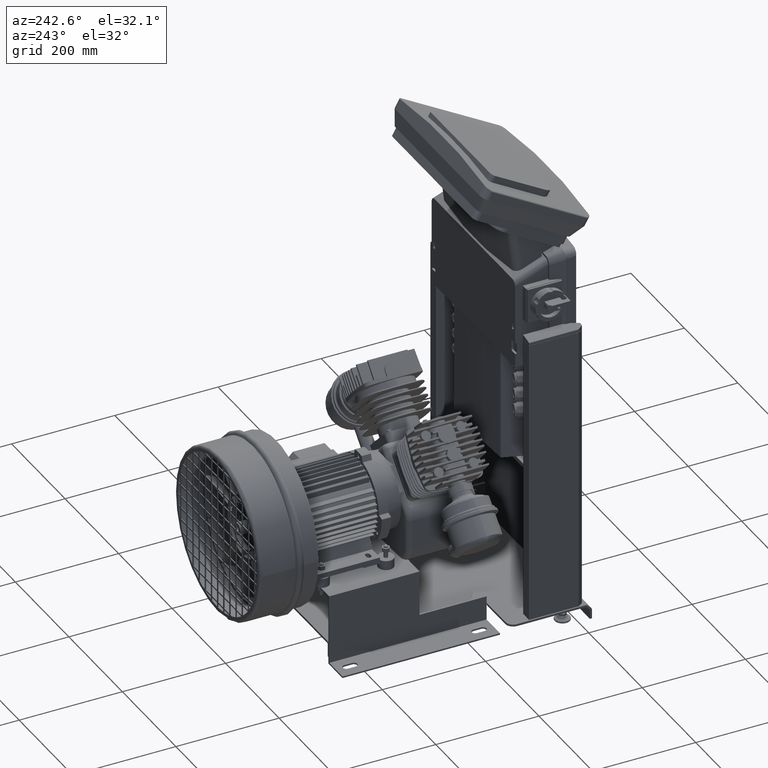
[diagram: clean part render]
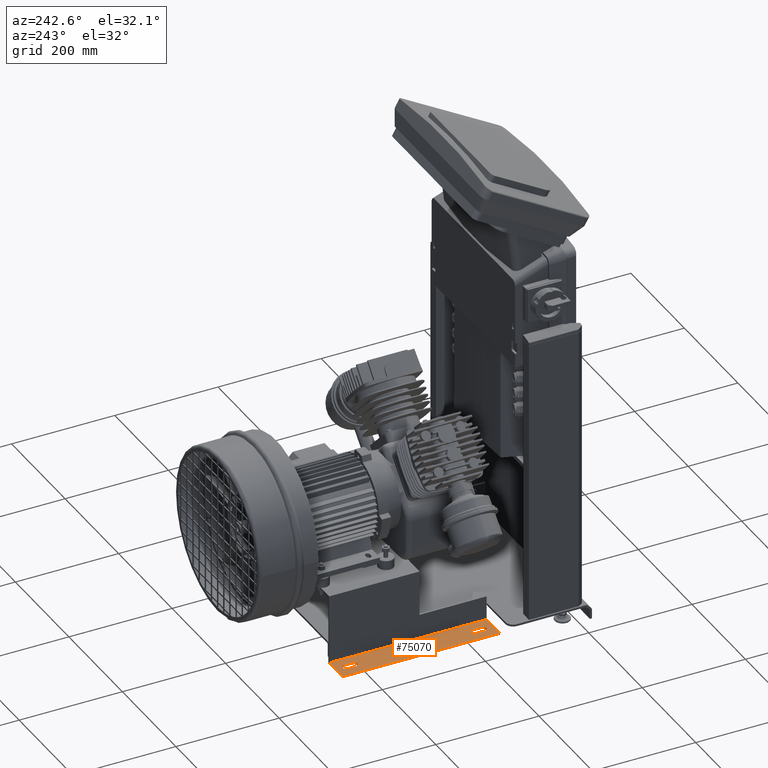
[diagram: same view with one face highlighted and labeled with its STEP entity id]
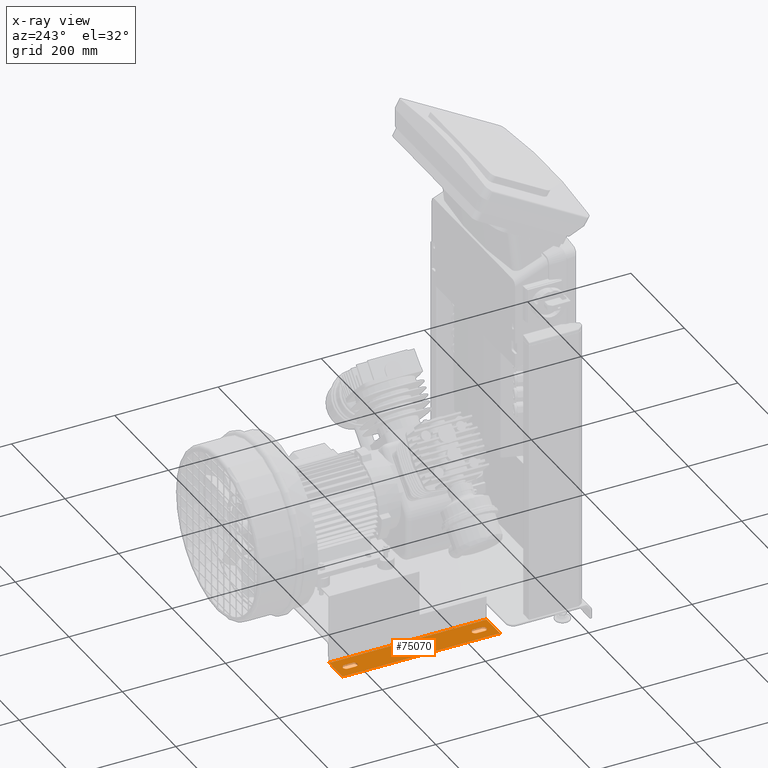
[diagram: x-ray of the same camera — body ghosted, the highlighted face saturated]
A machine part, auxiliary view. The second image highlights one B-rep face of the part: STEP entity #75070.
The next image is the same camera in x-ray: the body ghosted, the highlighted face saturated — about 0% of this face is hidden behind the body in this view.
In plain terms, the highlighted face is a freeform B-spline surface patch.
Its self-contained STEP definition (entity closure, byte-faithful):
#74210=CARTESIAN_POINT('',(-143.43243870689912,422.30965765900055,-23.000000000000039));
#74211=VERTEX_POINT('',#74210);
#74226=CARTESIAN_POINT('',(-143.43243870689912,437.30965765900055,-23.000000000000039));
#74227=VERTEX_POINT('',#74226);
#74234=CARTESIAN_POINT('',(-143.43243870689912,422.30965765900055,-23.000000000000039));
#74235=DIRECTION('',(0.0,1.0,0.0));
#74236=VECTOR('',#74235,15.0);
#74237=LINE('',#74234,#74236);
#74238=EDGE_CURVE('',#74211,#74227,#74237,.T.);
#74248=CARTESIAN_POINT('',(-130.43243870689912,437.30965765900055,-23.000000000000039));
#74249=VERTEX_POINT('',#74248);
#74266=CARTESIAN_POINT('',(-130.43243870689912,422.30965765900055,-23.000000000000039));
#74267=VERTEX_POINT('',#74266);
#74274=CARTESIAN_POINT('',(-130.43243870689912,437.30965765900055,-23.000000000000039));
#74275=DIRECTION('',(0.0,-1.0,0.0));
#74276=VECTOR('',#74275,15.0);
#74277=LINE('',#74274,#74276);
#74278=EDGE_CURVE('',#74249,#74267,#74277,.T.);
#74297=CARTESIAN_POINT('',(-136.93243870689912,422.30965765900055,-23.000000000000039));
#74298=DIRECTION('',(0.0,0.0,-1.0));
#74299=DIRECTION('',(1.0,0.0,0.0));
#74300=AXIS2_PLACEMENT_3D('',#74297,#74298,#74299);
#74301=CIRCLE('',#74300,6.5);
#74302=EDGE_CURVE('',#74267,#74211,#74301,.T.);
#74321=CARTESIAN_POINT('',(-136.93243870689912,437.30965765900055,-23.000000000000039));
#74322=DIRECTION('',(0.0,0.0,-1.0));
#74323=DIRECTION('',(1.0,0.0,0.0));
#74324=AXIS2_PLACEMENT_3D('',#74321,#74322,#74323);
#74325=CIRCLE('',#74324,6.5);
#74326=EDGE_CURVE('',#74227,#74249,#74325,.T.);
#74338=CARTESIAN_POINT('',(-143.43243870689912,172.30965765900055,-23.000000000000039));
#74339=VERTEX_POINT('',#74338);
#74354=CARTESIAN_POINT('',(-143.43243870689912,187.30965765900055,-23.000000000000039));
#74355=VERTEX_POINT('',#74354);
#74362=CARTESIAN_POINT('',(-143.43243870689912,172.30965765900055,-23.000000000000039));
#74363=DIRECTION('',(0.0,1.0,0.0));
#74364=VECTOR('',#74363,15.0);
#74365=LINE('',#74362,#74364);
#74366=EDGE_CURVE('',#74339,#74355,#74365,.T.);
#74376=CARTESIAN_POINT('',(-130.43243870689912,187.30965765900055,-23.000000000000039));
#74377=VERTEX_POINT('',#74376);
#74394=CARTESIAN_POINT('',(-130.43243870689912,172.30965765900055,-23.000000000000039));
#74395=VERTEX_POINT('',#74394);
#74402=CARTESIAN_POINT('',(-130.43243870689912,187.30965765900055,-23.000000000000039));
#74403=DIRECTION('',(0.0,-1.0,0.0));
#74404=VECTOR('',#74403,15.0);
#74405=LINE('',#74402,#74404);
#74406=EDGE_CURVE('',#74377,#74395,#74405,.T.);
#74425=CARTESIAN_POINT('',(-136.93243870689912,172.30965765900055,-23.000000000000039));
#74426=DIRECTION('',(0.0,0.0,-1.0));
#74427=DIRECTION('',(1.0,0.0,0.0));
#74428=AXIS2_PLACEMENT_3D('',#74425,#74426,#74427);
#74429=CIRCLE('',#74428,6.5);
#74430=EDGE_CURVE('',#74395,#74339,#74429,.T.);
#74449=CARTESIAN_POINT('',(-136.93243870689912,187.30965765900055,-23.000000000000039));
#74450=DIRECTION('',(0.0,0.0,-1.0));
#74451=DIRECTION('',(1.0,0.0,0.0));
#74452=AXIS2_PLACEMENT_3D('',#74449,#74450,#74451);
#74453=CIRCLE('',#74452,6.5);
#74454=EDGE_CURVE('',#74355,#74377,#74453,.T.);
#74915=CARTESIAN_POINT('',(-161.93243870689963,457.30965765900055,-23.000000000000039));
#74916=VERTEX_POINT('',#74915);
#74923=CARTESIAN_POINT('',(-111.93243870670767,457.30965765900055,-23.000000000000039));
#74924=VERTEX_POINT('',#74923);
#74925=CARTESIAN_POINT('',(-161.93243870689963,457.30965765900055,-23.000000000000039));
#74926=DIRECTION('',(1.0,0.0,0.0));
#74927=VECTOR('',#74926,50.00000000019196);
#74928=LINE('',#74925,#74927);
#74929=EDGE_CURVE('',#74916,#74924,#74928,.T.);
#75028=CARTESIAN_POINT('',(-161.93243870689963,152.30965765900055,-23.000000000000039));
#75029=CARTESIAN_POINT('',(-111.93243870670766,152.30965765900055,-23.000000000000039));
#75030=CARTESIAN_POINT('',(-161.93243870689963,457.30965765900055,-23.000000000000039));
#75031=CARTESIAN_POINT('',(-111.93243870670767,457.30965765900055,-23.000000000000039));
#75032=B_SPLINE_SURFACE_WITH_KNOTS('',1,1,((#75028,#75030),(#75029,#75031)),.UNSPECIFIED.,.F.,.F.,.U.,(2,2),(2,2),(0.0,50.000000000191974),(0.0,305.0),.UNSPECIFIED.);
#75033=CARTESIAN_POINT('',(-111.93243870670766,152.30965765900055,-23.000000000000039));
#75034=VERTEX_POINT('',#75033);
#75035=CARTESIAN_POINT('',(-111.93243870670767,457.30965765900055,-23.000000000000032));
#75036=DIRECTION('',(0.0,-1.0,0.0));
#75037=VECTOR('',#75036,305.0);
#75038=LINE('',#75035,#75037);
#75039=EDGE_CURVE('',#74924,#75034,#75038,.T.);
#75040=ORIENTED_EDGE('',*,*,#75039,.F.);
#75041=ORIENTED_EDGE('',*,*,#74929,.F.);
#75042=CARTESIAN_POINT('',(-161.93243870689963,152.30965765900055,-23.000000000000039));
#75043=VERTEX_POINT('',#75042);
#75044=CARTESIAN_POINT('',(-161.93243870689963,152.30965765900055,-23.000000000000039));
#75045=DIRECTION('',(0.0,1.0,0.0));
#75046=VECTOR('',#75045,305.0);
#75047=LINE('',#75044,#75046);
#75048=EDGE_CURVE('',#75043,#74916,#75047,.T.);
#75049=ORIENTED_EDGE('',*,*,#75048,.F.);
#75050=CARTESIAN_POINT('',(-111.93243870670766,152.30965765900055,-23.000000000000039));
#75051=DIRECTION('',(-1.0,0.0,0.0));
#75052=VECTOR('',#75051,50.000000000191974);
#75053=LINE('',#75050,#75052);
#75054=EDGE_CURVE('',#75034,#75043,#75053,.T.);
#75055=ORIENTED_EDGE('',*,*,#75054,.F.);
#75056=EDGE_LOOP('',(#75040,#75041,#75049,#75055));
#75057=FACE_OUTER_BOUND('',#75056,.T.);
#75058=ORIENTED_EDGE('',*,*,#74278,.T.);
#75059=ORIENTED_EDGE('',*,*,#74302,.T.);
#75060=ORIENTED_EDGE('',*,*,#74238,.T.);
#75061=ORIENTED_EDGE('',*,*,#74326,.T.);
#75062=EDGE_LOOP('',(#75058,#75059,#75060,#75061));
#75063=FACE_BOUND('',#75062,.T.);
#75064=ORIENTED_EDGE('',*,*,#74406,.T.);
#75065=ORIENTED_EDGE('',*,*,#74430,.T.);
#75066=ORIENTED_EDGE('',*,*,#74366,.T.);
#75067=ORIENTED_EDGE('',*,*,#74454,.T.);
#75068=EDGE_LOOP('',(#75064,#75065,#75066,#75067));
#75069=FACE_BOUND('',#75068,.T.);
#75070=ADVANCED_FACE('',(#75057,#75063,#75069),#75032,.T.);